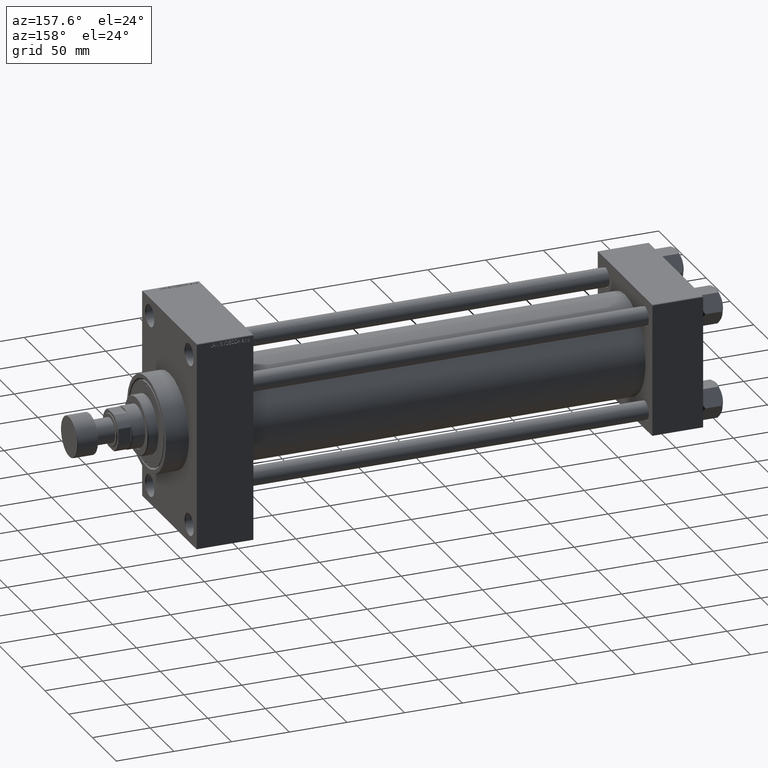
[diagram: clean part render]
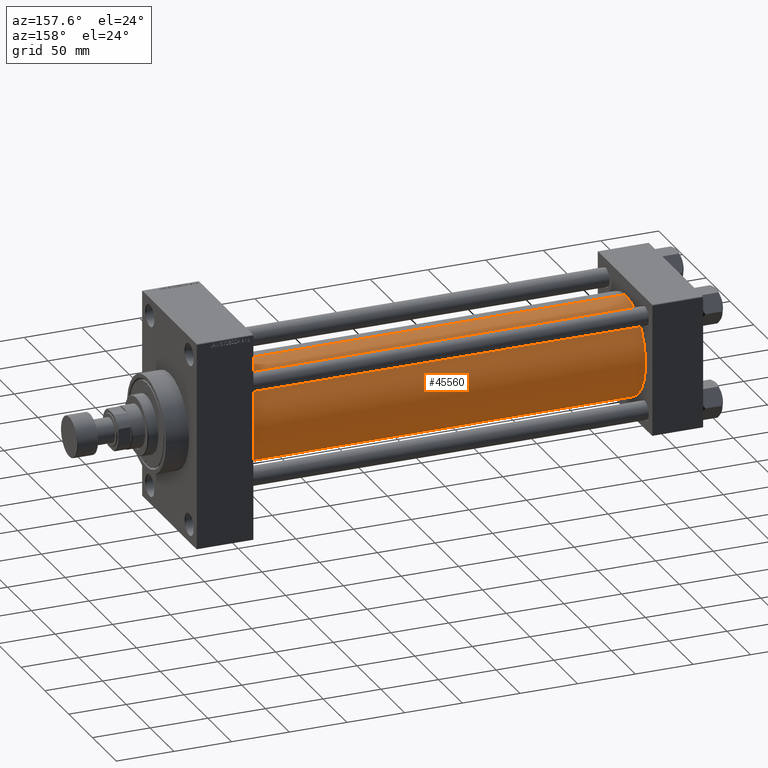
[diagram: same view with one face highlighted and labeled with its STEP entity id]
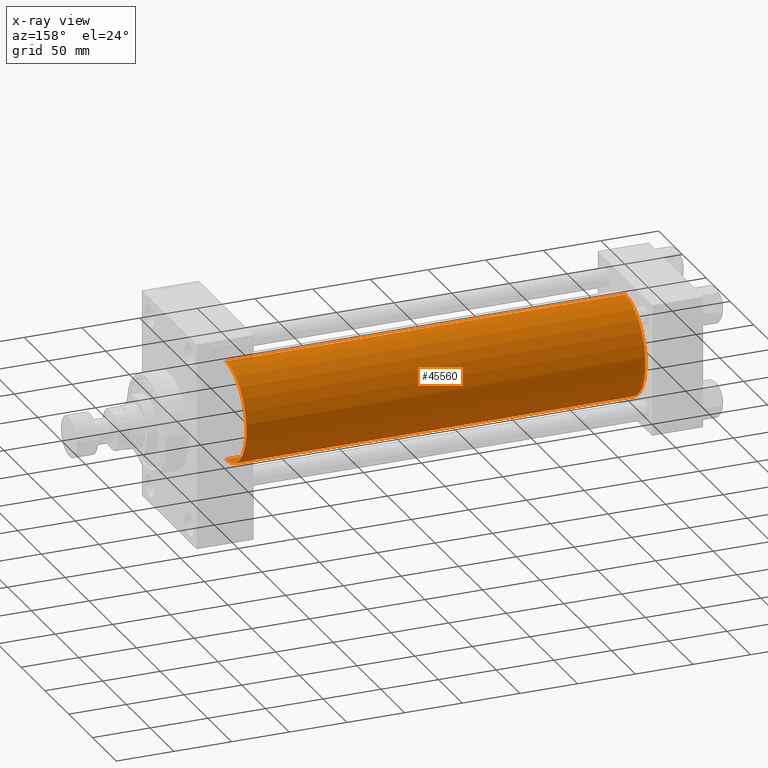
[diagram: x-ray of the same camera — body ghosted, the highlighted face saturated]
A machine part, auxiliary view. The second image highlights one B-rep face of the part: STEP entity #45560.
The next image is the same camera in x-ray: the body ghosted, the highlighted face saturated — about 0% of this face is hidden behind the body in this view.
In plain terms, the highlighted cylindrical surface (partial cylindrical patch) has radius 43 mm, axis along (-1, -0, -0).
Its self-contained STEP definition (entity closure, byte-faithful):
#358 = CARTESIAN_POINT ( 'NONE',  ( 389.9999999999999432, 2.663896022368408223E-15, -43.00000000000000000 ) ) ;
#872 = CARTESIAN_POINT ( 'NONE',  ( 389.9999999999999432, -2.602085213965210642E-15, 43.00000000000000000 ) ) ;
#3407 = CARTESIAN_POINT ( 'NONE',  ( 389.9999999999999432, -2.602085213965210642E-15, 0.000000000000000000 ) ) ;
#3872 = CARTESIAN_POINT ( 'NONE',  ( 389.9999999999999432, -2.602085213965210642E-15, 43.00000000000000000 ) ) ;
#4106 = DIRECTION ( 'NONE',  ( 0.000000000000000000, 0.000000000000000000, 1.000000000000000000 ) ) ;
#4747 = EDGE_CURVE ( 'NONE', #34937, #32437, #17900, .T. ) ;
#9593 = AXIS2_PLACEMENT_3D ( 'NONE', #29999, #37596, #4106 ) ;
#9778 = AXIS2_PLACEMENT_3D ( 'NONE', #40034, #16847, #31735 ) ;
#11448 = DIRECTION ( 'NONE',  ( -1.000000000000000000, -0.000000000000000000, -0.000000000000000000 ) ) ;
#13816 = ORIENTED_EDGE ( 'NONE', *, *, #19411, .F. ) ;
#14597 = CARTESIAN_POINT ( 'NONE',  ( 389.9999999999999432, 2.663896022368408223E-15, -43.00000000000000000 ) ) ;
#16847 = DIRECTION ( 'NONE',  ( -1.000000000000000000, -0.000000000000000000, -0.000000000000000000 ) ) ;
#16994 = EDGE_CURVE ( 'NONE', #40296, #18387, #26742, .T. ) ;
#17420 = LINE ( 'NONE', #3872, #29958 ) ;
#17900 = CIRCLE ( 'NONE', #20246, 43.00000000000000000 ) ;
#18387 = VERTEX_POINT ( 'NONE', #27629 ) ;
#19411 = EDGE_CURVE ( 'NONE', #32437, #18387, #17420, .T. ) ;
#20246 = AXIS2_PLACEMENT_3D ( 'NONE', #3407, #47904, #25411 ) ;
#24407 = FACE_OUTER_BOUND ( 'NONE', #47822, .T. ) ;
#25411 = DIRECTION ( 'NONE',  ( 0.000000000000000000, 0.000000000000000000, -1.000000000000000000 ) ) ;
#26742 = CIRCLE ( 'NONE', #9593, 43.00000000000000000 ) ;
#27629 = CARTESIAN_POINT ( 'NONE',  ( 43.99999999999998579, -2.602085213965210642E-15, 43.00000000000000000 ) ) ;
#29483 = DIRECTION ( 'NONE',  ( -1.000000000000000000, -0.000000000000000000, -0.000000000000000000 ) ) ;
#29958 = VECTOR ( 'NONE', #11448, 1000.000000000000000 ) ;
#29999 = CARTESIAN_POINT ( 'NONE',  ( 43.99999999999998579, -2.602085213965210642E-15, 0.000000000000000000 ) ) ;
#30216 = LINE ( 'NONE', #14597, #42278 ) ;
#31735 = DIRECTION ( 'NONE',  ( 0.000000000000000000, 0.000000000000000000, 1.000000000000000000 ) ) ;
#32437 = VERTEX_POINT ( 'NONE', #872 ) ;
#33229 = EDGE_CURVE ( 'NONE', #34937, #40296, #30216, .T. ) ;
#34854 = CARTESIAN_POINT ( 'NONE',  ( 43.99999999999998579, 2.663896022368408223E-15, -43.00000000000000000 ) ) ;
#34937 = VERTEX_POINT ( 'NONE', #358 ) ;
#37596 = DIRECTION ( 'NONE',  ( 1.000000000000000000, -0.000000000000000000, 0.000000000000000000 ) ) ;
#37983 = ORIENTED_EDGE ( 'NONE', *, *, #33229, .T. ) ;
#38713 = ORIENTED_EDGE ( 'NONE', *, *, #4747, .F. ) ;
#40034 = CARTESIAN_POINT ( 'NONE',  ( 389.9999999999999432, -2.602085213965210642E-15, 0.000000000000000000 ) ) ;
#40296 = VERTEX_POINT ( 'NONE', #34854 ) ;
#40755 = ORIENTED_EDGE ( 'NONE', *, *, #16994, .T. ) ;
#42278 = VECTOR ( 'NONE', #29483, 1000.000000000000000 ) ;
#45560 = ADVANCED_FACE ( 'NONE', ( #24407 ), #46666, .T. ) ;
#46666 = CYLINDRICAL_SURFACE ( 'NONE', #9778, 43.00000000000000000 ) ;
#47822 = EDGE_LOOP ( 'NONE', ( #38713, #37983, #40755, #13816 ) ) ;
#47904 = DIRECTION ( 'NONE',  ( 1.000000000000000000, 0.000000000000000000, 0.000000000000000000 ) ) ;